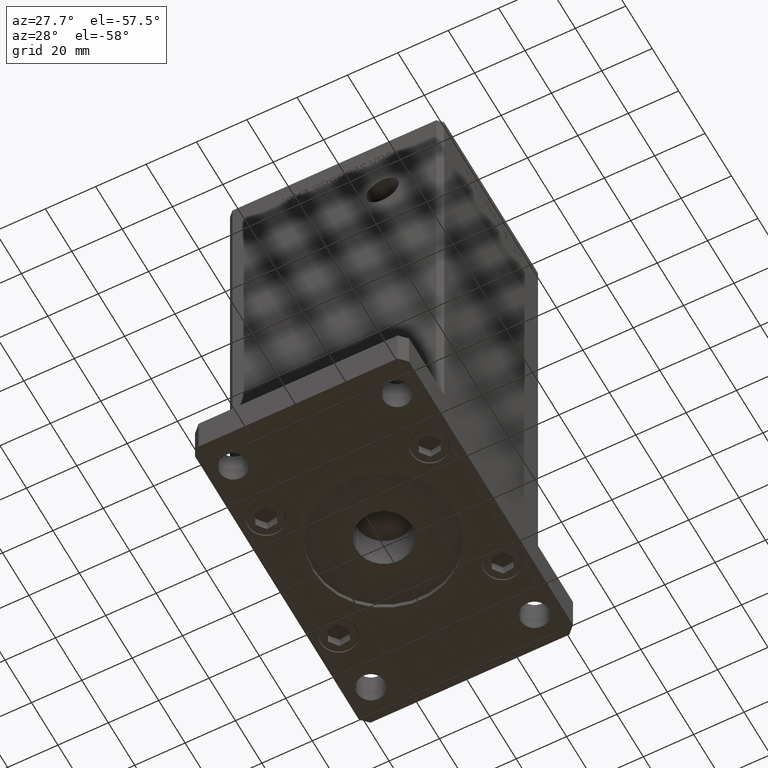
[diagram: clean part render]
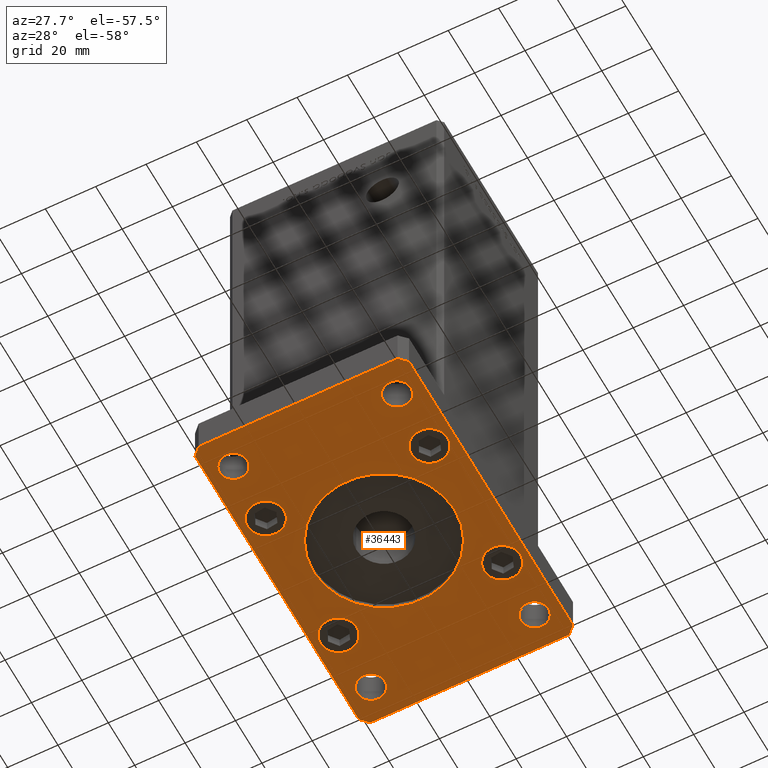
[diagram: same view with one face highlighted and labeled with its STEP entity id]
A machine part, auxiliary view. The second image highlights one B-rep face of the part: STEP entity #36443.
In plain terms, the highlighted planar face has unit normal (0, 0, 1).
Its self-contained STEP definition (entity closure, byte-faithful):
#69 = CIRCLE ( 'NONE', #32183, 5.499999999999991118 ) ;
#217 = DIRECTION ( 'NONE',  ( 0.000000000000000000, 0.000000000000000000, 1.000000000000000000 ) ) ;
#1190 = EDGE_CURVE ( 'NONE', #19573, #35156, #3472, .T. ) ;
#1247 = PLANE ( 'NONE',  #45468 ) ;
#1317 = ORIENTED_EDGE ( 'NONE', *, *, #5429, .T. ) ;
#1530 = CARTESIAN_POINT ( 'NONE',  ( -39.50000000000003553, 65.00000000000000000, 0.000000000000000000 ) ) ;
#1678 = CIRCLE ( 'NONE', #6941, 7.249999999999999112 ) ;
#1743 = AXIS2_PLACEMENT_3D ( 'NONE', #12430, #28985, #24894 ) ;
#1745 = ORIENTED_EDGE ( 'NONE', *, *, #6713, .F. ) ;
#1776 = CARTESIAN_POINT ( 'NONE',  ( -25.25000000000000000, -27.50000000000000000, 0.000000000000000000 ) ) ;
#2996 = VERTEX_POINT ( 'NONE', #10742 ) ;
#3176 = VECTOR ( 'NONE', #15883, 1000.000000000000000 ) ;
#3380 = ORIENTED_EDGE ( 'NONE', *, *, #9908, .T. ) ;
#3472 = LINE ( 'NONE', #19491, #31107 ) ;
#3775 = VERTEX_POINT ( 'NONE', #35430 ) ;
#3977 = DIRECTION ( 'NONE',  ( 0.000000000000000000, 1.000000000000000000, 0.000000000000000000 ) ) ;
#4001 = CARTESIAN_POINT ( 'NONE',  ( 39.50000000000002842, 65.00000000000002842, 0.000000000000000000 ) ) ;
#4085 = CARTESIAN_POINT ( 'NONE',  ( -32.50000000000000711, 27.50000000000000000, 0.000000000000000000 ) ) ;
#4290 = VECTOR ( 'NONE', #17835, 1000.000000000000000 ) ;
#4485 = AXIS2_PLACEMENT_3D ( 'NONE', #4085, #16574, #24710 ) ;
#4531 = DIRECTION ( 'NONE',  ( 0.000000000000000000, 0.000000000000000000, 1.000000000000000000 ) ) ;
#4546 = CARTESIAN_POINT ( 'NONE',  ( -38.00000000000000000, 52.00000000000000000, 0.000000000000000000 ) ) ;
#5429 = EDGE_CURVE ( 'NONE', #52117, #29463, #25949, .T. ) ;
#6012 = DIRECTION ( 'NONE',  ( 1.000000000000000000, 0.000000000000000000, 0.000000000000000000 ) ) ;
#6709 = DIRECTION ( 'NONE',  ( 0.000000000000000000, 0.000000000000000000, 1.000000000000000000 ) ) ;
#6713 = EDGE_CURVE ( 'NONE', #35535, #19573, #42812, .T. ) ;
#6735 = VERTEX_POINT ( 'NONE', #10499 ) ;
#6870 = EDGE_CURVE ( 'NONE', #45907, #27167, #1678, .T. ) ;
#6941 = AXIS2_PLACEMENT_3D ( 'NONE', #19172, #11584, #22966 ) ;
#7000 = ORIENTED_EDGE ( 'NONE', *, *, #10631, .F. ) ;
#7002 = AXIS2_PLACEMENT_3D ( 'NONE', #19513, #36061, #52637 ) ;
#7084 = CARTESIAN_POINT ( 'NONE',  ( 32.50000000000000000, -27.50000000000000000, 0.000000000000000000 ) ) ;
#7114 = EDGE_CURVE ( 'NONE', #40367, #46954, #45066, .T. ) ;
#7289 = FACE_BOUND ( 'NONE', #12927, .T. ) ;
#7879 = VERTEX_POINT ( 'NONE', #12903 ) ;
#8684 = CARTESIAN_POINT ( 'NONE',  ( -27.00000000000000711, 52.00000000000000000, 0.000000000000000000 ) ) ;
#8716 = DIRECTION ( 'NONE',  ( 0.000000000000000000, 0.000000000000000000, -1.000000000000000000 ) ) ;
#8886 = FACE_BOUND ( 'NONE', #41416, .T. ) ;
#9388 = ORIENTED_EDGE ( 'NONE', *, *, #21458, .F. ) ;
#9908 = EDGE_CURVE ( 'NONE', #27167, #45907, #11318, .T. ) ;
#10499 = CARTESIAN_POINT ( 'NONE',  ( 27.00000000000001421, 51.99999999999999289, 0.000000000000000000 ) ) ;
#10535 = ORIENTED_EDGE ( 'NONE', *, *, #18098, .T. ) ;
#10631 = EDGE_CURVE ( 'NONE', #19297, #15177, #49672, .T. ) ;
#10708 = AXIS2_PLACEMENT_3D ( 'NONE', #20867, #217, #49383 ) ;
#10742 = CARTESIAN_POINT ( 'NONE',  ( -37.99999999999997868, -52.00000000000000711, 0.000000000000000000 ) ) ;
#10833 = CARTESIAN_POINT ( 'NONE',  ( 37.99999999999997868, -52.00000000000000711, 0.000000000000000000 ) ) ;
#11318 = CIRCLE ( 'NONE', #52067, 7.249999999999999112 ) ;
#11325 = ORIENTED_EDGE ( 'NONE', *, *, #21607, .T. ) ;
#11505 = CARTESIAN_POINT ( 'NONE',  ( 32.50000000000000000, 27.50000000000000000, 0.000000000000000000 ) ) ;
#11533 = DIRECTION ( 'NONE',  ( -1.000000000000000000, 0.000000000000000000, 0.000000000000000000 ) ) ;
#11584 = DIRECTION ( 'NONE',  ( 0.000000000000000000, 0.000000000000000000, 1.000000000000000000 ) ) ;
#11592 = CIRCLE ( 'NONE', #12428, 28.00000000000000000 ) ;
#11629 = DIRECTION ( 'NONE',  ( 2.238352872228137677E-16, -1.000000000000000000, 0.000000000000000000 ) ) ;
#12428 = AXIS2_PLACEMENT_3D ( 'NONE', #37849, #33779, #33248 ) ;
#12430 = CARTESIAN_POINT ( 'NONE',  ( -32.49999999999997868, -52.00000000000000711, 0.000000000000000000 ) ) ;
#12530 = CARTESIAN_POINT ( 'NONE',  ( -42.49999999999999289, -62.00000000000001421, 0.000000000000000000 ) ) ;
#12610 = DIRECTION ( 'NONE',  ( 1.000000000000000000, 0.000000000000000000, 0.000000000000000000 ) ) ;
#12679 = DIRECTION ( 'NONE',  ( 1.000000000000000000, 0.000000000000000000, -0.000000000000000000 ) ) ;
#12853 = CARTESIAN_POINT ( 'NONE',  ( 39.50000000000002842, 65.00000000000002842, 0.000000000000000000 ) ) ;
#12903 = CARTESIAN_POINT ( 'NONE',  ( -39.50000000000000000, -65.00000000000000000, 0.000000000000000000 ) ) ;
#12927 = EDGE_LOOP ( 'NONE', ( #45845, #33907 ) ) ;
#12995 = CARTESIAN_POINT ( 'NONE',  ( -39.50000000000003553, 65.00000000000000000, 0.000000000000000000 ) ) ;
#13259 = AXIS2_PLACEMENT_3D ( 'NONE', #35642, #31847, #18566 ) ;
#13917 = CARTESIAN_POINT ( 'NONE',  ( -32.50000000000000711, 27.50000000000000000, 0.000000000000000000 ) ) ;
#14919 = AXIS2_PLACEMENT_3D ( 'NONE', #13917, #29414, #37819 ) ;
#15177 = VERTEX_POINT ( 'NONE', #12853 ) ;
#15183 = CIRCLE ( 'NONE', #44698, 28.00000000000000000 ) ;
#15196 = VERTEX_POINT ( 'NONE', #21266 ) ;
#15481 = DIRECTION ( 'NONE',  ( 0.000000000000000000, 0.000000000000000000, 1.000000000000000000 ) ) ;
#15883 = DIRECTION ( 'NONE',  ( 1.000000000000000000, 1.405345600791337191E-15, 0.000000000000000000 ) ) ;
#15972 = EDGE_CURVE ( 'NONE', #29463, #52117, #31436, .T. ) ;
#16171 = CARTESIAN_POINT ( 'NONE',  ( 25.25000000000000000, -27.50000000000000000, 0.000000000000000000 ) ) ;
#16393 = EDGE_CURVE ( 'NONE', #15177, #35535, #36043, .T. ) ;
#16447 = EDGE_LOOP ( 'NONE', ( #20212, #10535 ) ) ;
#16574 = DIRECTION ( 'NONE',  ( 0.000000000000000000, 0.000000000000000000, 1.000000000000000000 ) ) ;
#16642 = EDGE_CURVE ( 'NONE', #44931, #32086, #11592, .T. ) ;
#17284 = FACE_BOUND ( 'NONE', #34687, .T. ) ;
#17795 = ORIENTED_EDGE ( 'NONE', *, *, #1190, .F. ) ;
#17835 = DIRECTION ( 'NONE',  ( -0.7071067811865466846, -0.7071067811865483499, 0.000000000000000000 ) ) ;
#17856 = CARTESIAN_POINT ( 'NONE',  ( -32.50000000000000000, 52.00000000000000000, 0.000000000000000000 ) ) ;
#18098 = EDGE_CURVE ( 'NONE', #21207, #49313, #47836, .T. ) ;
#18115 = EDGE_CURVE ( 'NONE', #43280, #15196, #45230, .T. ) ;
#18489 = CIRCLE ( 'NONE', #47083, 5.499999999999994671 ) ;
#18566 = DIRECTION ( 'NONE',  ( 1.000000000000000000, 0.000000000000000000, 0.000000000000000000 ) ) ;
#18595 = EDGE_LOOP ( 'NONE', ( #24391, #9388, #17795, #1745, #27154, #7000, #50734, #36233 ) ) ;
#19068 = EDGE_CURVE ( 'NONE', #2996, #43843, #33837, .T. ) ;
#19172 = CARTESIAN_POINT ( 'NONE',  ( -32.50000000000000000, -27.50000000000000000, 0.000000000000000000 ) ) ;
#19297 = VERTEX_POINT ( 'NONE', #29970 ) ;
#19491 = CARTESIAN_POINT ( 'NONE',  ( -42.50000000000002132, 62.00000000000000711, 0.000000000000000000 ) ) ;
#19513 = CARTESIAN_POINT ( 'NONE',  ( -32.49999999999997868, -52.00000000000000711, 0.000000000000000000 ) ) ;
#19531 = EDGE_CURVE ( 'NONE', #49664, #30538, #19987, .T. ) ;
#19573 = VERTEX_POINT ( 'NONE', #24235 ) ;
#19987 = CIRCLE ( 'NONE', #38140, 7.249999999999999112 ) ;
#20119 = CARTESIAN_POINT ( 'NONE',  ( -32.50000000000000000, -27.50000000000000000, 0.000000000000000000 ) ) ;
#20205 = EDGE_CURVE ( 'NONE', #43843, #2996, #32141, .T. ) ;
#20212 = ORIENTED_EDGE ( 'NONE', *, *, #31321, .T. ) ;
#20287 = CARTESIAN_POINT ( 'NONE',  ( 42.50000000000000000, -61.99999999999988631, 0.000000000000000000 ) ) ;
#20828 = CARTESIAN_POINT ( 'NONE',  ( 0.000000000000000000, 0.000000000000000000, 0.000000000000000000 ) ) ;
#20867 = CARTESIAN_POINT ( 'NONE',  ( 32.49999999999997868, -52.00000000000000711, 0.000000000000000000 ) ) ;
#21090 = FACE_BOUND ( 'NONE', #39929, .T. ) ;
#21161 = DIRECTION ( 'NONE',  ( -0.7071067811865417996, 0.7071067811865532349, 0.000000000000000000 ) ) ;
#21207 = VERTEX_POINT ( 'NONE', #10833 ) ;
#21266 = CARTESIAN_POINT ( 'NONE',  ( -25.25000000000000711, 27.50000000000000000, 0.000000000000000000 ) ) ;
#21458 = EDGE_CURVE ( 'NONE', #35156, #7879, #36545, .T. ) ;
#21607 = EDGE_CURVE ( 'NONE', #30538, #49664, #21748, .T. ) ;
#21610 = AXIS2_PLACEMENT_3D ( 'NONE', #7084, #15481, #32041 ) ;
#21664 = DIRECTION ( 'NONE',  ( 0.000000000000000000, 0.000000000000000000, 1.000000000000000000 ) ) ;
#21748 = CIRCLE ( 'NONE', #42555, 7.249999999999999112 ) ;
#21891 = FACE_BOUND ( 'NONE', #44155, .T. ) ;
#21979 = DIRECTION ( 'NONE',  ( 0.000000000000000000, 0.000000000000000000, 1.000000000000000000 ) ) ;
#22069 = EDGE_CURVE ( 'NONE', #3775, #6735, #69, .T. ) ;
#22364 = DIRECTION ( 'NONE',  ( 0.000000000000000000, 0.000000000000000000, 1.000000000000000000 ) ) ;
#22491 = LINE ( 'NONE', #39058, #29141 ) ;
#22505 = DIRECTION ( 'NONE',  ( 1.000000000000000000, 0.000000000000000000, 0.000000000000000000 ) ) ;
#22908 = DIRECTION ( 'NONE',  ( 1.000000000000000000, 0.000000000000000000, 0.000000000000000000 ) ) ;
#22966 = DIRECTION ( 'NONE',  ( 1.000000000000000000, 0.000000000000000000, 0.000000000000000000 ) ) ;
#23172 = DIRECTION ( 'NONE',  ( 0.000000000000000000, 0.000000000000000000, 1.000000000000000000 ) ) ;
#23249 = DIRECTION ( 'NONE',  ( 1.000000000000000000, 0.000000000000000000, 0.000000000000000000 ) ) ;
#23684 = EDGE_CURVE ( 'NONE', #48745, #19297, #24066, .T. ) ;
#24066 = LINE ( 'NONE', #20287, #46933 ) ;
#24121 = EDGE_CURVE ( 'NONE', #15196, #43280, #29647, .T. ) ;
#24235 = CARTESIAN_POINT ( 'NONE',  ( -42.50000000000002132, 62.00000000000000711, 0.000000000000000000 ) ) ;
#24391 = ORIENTED_EDGE ( 'NONE', *, *, #46074, .F. ) ;
#24583 = CARTESIAN_POINT ( 'NONE',  ( -42.49999999999999289, -62.00000000000001421, 0.000000000000000000 ) ) ;
#24710 = DIRECTION ( 'NONE',  ( 1.000000000000000000, 0.000000000000000000, 0.000000000000000000 ) ) ;
#24851 = ORIENTED_EDGE ( 'NONE', *, *, #18115, .T. ) ;
#24894 = DIRECTION ( 'NONE',  ( 1.000000000000000000, 0.000000000000000000, 0.000000000000000000 ) ) ;
#25148 = FACE_BOUND ( 'NONE', #43449, .T. ) ;
#25197 = ORIENTED_EDGE ( 'NONE', *, *, #24121, .T. ) ;
#25245 = CARTESIAN_POINT ( 'NONE',  ( 42.50000000000000000, -61.99999999999988631, 0.000000000000000000 ) ) ;
#25949 = CIRCLE ( 'NONE', #21610, 7.249999999999999112 ) ;
#26872 = CARTESIAN_POINT ( 'NONE',  ( 25.25000000000000000, 27.50000000000000000, 0.000000000000000000 ) ) ;
#27154 = ORIENTED_EDGE ( 'NONE', *, *, #16393, .F. ) ;
#27167 = VERTEX_POINT ( 'NONE', #39725 ) ;
#27183 = EDGE_CURVE ( 'NONE', #6735, #3775, #53163, .T. ) ;
#28639 = LINE ( 'NONE', #28907, #3176 ) ;
#28907 = CARTESIAN_POINT ( 'NONE',  ( -39.50000000000000000, -65.00000000000000000, 0.000000000000000000 ) ) ;
#28985 = DIRECTION ( 'NONE',  ( 0.000000000000000000, 0.000000000000000000, 1.000000000000000000 ) ) ;
#29141 = VECTOR ( 'NONE', #30647, 1000.000000000000114 ) ;
#29414 = DIRECTION ( 'NONE',  ( 0.000000000000000000, 0.000000000000000000, 1.000000000000000000 ) ) ;
#29463 = VERTEX_POINT ( 'NONE', #16171 ) ;
#29647 = CIRCLE ( 'NONE', #14919, 7.249999999999999112 ) ;
#29970 = CARTESIAN_POINT ( 'NONE',  ( 42.50000000000000000, 62.00000000000000711, 0.000000000000000000 ) ) ;
#30338 = DIRECTION ( 'NONE',  ( 1.000000000000000000, 0.000000000000000000, 0.000000000000000000 ) ) ;
#30432 = CARTESIAN_POINT ( 'NONE',  ( -28.00000000000000000, 0.000000000000000000, 0.000000000000000000 ) ) ;
#30538 = VERTEX_POINT ( 'NONE', #43814 ) ;
#30599 = AXIS2_PLACEMENT_3D ( 'NONE', #49806, #50605, #12610 ) ;
#30647 = DIRECTION ( 'NONE',  ( 0.7071067811865459074, 0.7071067811865491270, 0.000000000000000000 ) ) ;
#30800 = ORIENTED_EDGE ( 'NONE', *, *, #31364, .T. ) ;
#31107 = VECTOR ( 'NONE', #11629, 1000.000000000000000 ) ;
#31321 = EDGE_CURVE ( 'NONE', #49313, #21207, #52286, .T. ) ;
#31364 = EDGE_CURVE ( 'NONE', #46954, #40367, #18489, .T. ) ;
#31436 = CIRCLE ( 'NONE', #30599, 7.249999999999999112 ) ;
#31847 = DIRECTION ( 'NONE',  ( 0.000000000000000000, 0.000000000000000000, 1.000000000000000000 ) ) ;
#31944 = CARTESIAN_POINT ( 'NONE',  ( 39.50000000000001421, -64.99999999999988631, 0.000000000000000000 ) ) ;
#31968 = FACE_BOUND ( 'NONE', #44162, .T. ) ;
#32041 = DIRECTION ( 'NONE',  ( 1.000000000000000000, 0.000000000000000000, 0.000000000000000000 ) ) ;
#32086 = VERTEX_POINT ( 'NONE', #30432 ) ;
#32141 = CIRCLE ( 'NONE', #7002, 5.499999999999994671 ) ;
#32183 = AXIS2_PLACEMENT_3D ( 'NONE', #44158, #6709, #23249 ) ;
#32491 = CARTESIAN_POINT ( 'NONE',  ( 39.75000000000000000, -27.50000000000000000, 0.000000000000000000 ) ) ;
#32507 = FACE_OUTER_BOUND ( 'NONE', #18595, .T. ) ;
#33248 = DIRECTION ( 'NONE',  ( -1.000000000000000000, 0.000000000000000000, 0.000000000000000000 ) ) ;
#33350 = CARTESIAN_POINT ( 'NONE',  ( 28.00000000000000000, 3.429011037612589276E-15, 0.000000000000000000 ) ) ;
#33779 = DIRECTION ( 'NONE',  ( 0.000000000000000000, 0.000000000000000000, -1.000000000000000000 ) ) ;
#33837 = CIRCLE ( 'NONE', #1743, 5.499999999999994671 ) ;
#33907 = ORIENTED_EDGE ( 'NONE', *, *, #16642, .F. ) ;
#34687 = EDGE_LOOP ( 'NONE', ( #38320, #34882 ) ) ;
#34882 = ORIENTED_EDGE ( 'NONE', *, *, #22069, .T. ) ;
#35156 = VERTEX_POINT ( 'NONE', #12530 ) ;
#35430 = CARTESIAN_POINT ( 'NONE',  ( 37.99999999999999289, 51.99999999999999289, 0.000000000000000000 ) ) ;
#35535 = VERTEX_POINT ( 'NONE', #12995 ) ;
#35642 = CARTESIAN_POINT ( 'NONE',  ( 32.50000000000000000, 51.99999999999999289, 0.000000000000000000 ) ) ;
#36043 = LINE ( 'NONE', #4001, #37529 ) ;
#36061 = DIRECTION ( 'NONE',  ( 0.000000000000000000, 0.000000000000000000, 1.000000000000000000 ) ) ;
#36233 = ORIENTED_EDGE ( 'NONE', *, *, #40172, .F. ) ;
#36443 = ADVANCED_FACE ( 'NONE', ( #7289, #32507, #31968, #17284, #21891, #21090, #8886, #25148, #37646, #41718 ), #1247, .F. ) ;
#36466 = DIRECTION ( 'NONE',  ( 0.000000000000000000, 0.000000000000000000, 1.000000000000000000 ) ) ;
#36545 = LINE ( 'NONE', #24583, #49502 ) ;
#36937 = CARTESIAN_POINT ( 'NONE',  ( 32.49999999999997868, -52.00000000000000711, 0.000000000000000000 ) ) ;
#37071 = CARTESIAN_POINT ( 'NONE',  ( -39.75000000000000711, 27.50000000000000000, 0.000000000000000000 ) ) ;
#37529 = VECTOR ( 'NONE', #52616, 1000.000000000000000 ) ;
#37646 = FACE_BOUND ( 'NONE', #50447, .T. ) ;
#37695 = EDGE_CURVE ( 'NONE', #32086, #44931, #15183, .T. ) ;
#37819 = DIRECTION ( 'NONE',  ( 1.000000000000000000, 0.000000000000000000, 0.000000000000000000 ) ) ;
#37849 = CARTESIAN_POINT ( 'NONE',  ( 0.000000000000000000, 0.000000000000000000, 0.000000000000000000 ) ) ;
#38140 = AXIS2_PLACEMENT_3D ( 'NONE', #11505, #36466, #53040 ) ;
#38320 = ORIENTED_EDGE ( 'NONE', *, *, #27183, .T. ) ;
#39058 = CARTESIAN_POINT ( 'NONE',  ( 39.50000000000001421, -64.99999999999988631, 0.000000000000000000 ) ) ;
#39381 = ORIENTED_EDGE ( 'NONE', *, *, #15972, .T. ) ;
#39725 = CARTESIAN_POINT ( 'NONE',  ( -39.75000000000000000, -27.50000000000000000, 0.000000000000000000 ) ) ;
#39742 = CARTESIAN_POINT ( 'NONE',  ( 32.50000000000000000, 27.50000000000000000, 0.000000000000000000 ) ) ;
#39929 = EDGE_LOOP ( 'NONE', ( #3380, #49836 ) ) ;
#40172 = EDGE_CURVE ( 'NONE', #51208, #48745, #22491, .T. ) ;
#40367 = VERTEX_POINT ( 'NONE', #4546 ) ;
#40472 = ORIENTED_EDGE ( 'NONE', *, *, #7114, .T. ) ;
#41153 = DIRECTION ( 'NONE',  ( 0.7071067811865483499, -0.7071067811865466846, 0.000000000000000000 ) ) ;
#41416 = EDGE_LOOP ( 'NONE', ( #39381, #1317 ) ) ;
#41515 = ORIENTED_EDGE ( 'NONE', *, *, #20205, .T. ) ;
#41541 = DIRECTION ( 'NONE',  ( 0.000000000000000000, 0.000000000000000000, 1.000000000000000000 ) ) ;
#41676 = VECTOR ( 'NONE', #21161, 1000.000000000000000 ) ;
#41718 = FACE_BOUND ( 'NONE', #16447, .T. ) ;
#42555 = AXIS2_PLACEMENT_3D ( 'NONE', #39742, #23172, #22908 ) ;
#42812 = LINE ( 'NONE', #1530, #4290 ) ;
#43280 = VERTEX_POINT ( 'NONE', #37071 ) ;
#43449 = EDGE_LOOP ( 'NONE', ( #50986, #11325 ) ) ;
#43814 = CARTESIAN_POINT ( 'NONE',  ( 39.75000000000000000, 27.50000000000000000, 0.000000000000000000 ) ) ;
#43843 = VERTEX_POINT ( 'NONE', #44284 ) ;
#44097 = CARTESIAN_POINT ( 'NONE',  ( 26.99999999999998579, -52.00000000000000711, 0.000000000000000000 ) ) ;
#44155 = EDGE_LOOP ( 'NONE', ( #40472, #30800 ) ) ;
#44158 = CARTESIAN_POINT ( 'NONE',  ( 32.50000000000000000, 51.99999999999999289, 0.000000000000000000 ) ) ;
#44162 = EDGE_LOOP ( 'NONE', ( #51273, #41515 ) ) ;
#44284 = CARTESIAN_POINT ( 'NONE',  ( -26.99999999999998579, -52.00000000000000711, 0.000000000000000000 ) ) ;
#44698 = AXIS2_PLACEMENT_3D ( 'NONE', #46155, #8716, #11533 ) ;
#44931 = VERTEX_POINT ( 'NONE', #33350 ) ;
#45066 = CIRCLE ( 'NONE', #51147, 5.499999999999994671 ) ;
#45081 = CARTESIAN_POINT ( 'NONE',  ( 42.50000000000000000, 62.00000000000000711, 0.000000000000000000 ) ) ;
#45230 = CIRCLE ( 'NONE', #4485, 7.249999999999999112 ) ;
#45468 = AXIS2_PLACEMENT_3D ( 'NONE', #20828, #4531, #12679 ) ;
#45845 = ORIENTED_EDGE ( 'NONE', *, *, #37695, .F. ) ;
#45907 = VERTEX_POINT ( 'NONE', #1776 ) ;
#46074 = EDGE_CURVE ( 'NONE', #7879, #51208, #28639, .T. ) ;
#46155 = CARTESIAN_POINT ( 'NONE',  ( 0.000000000000000000, 0.000000000000000000, 0.000000000000000000 ) ) ;
#46933 = VECTOR ( 'NONE', #3977, 1000.000000000000000 ) ;
#46954 = VERTEX_POINT ( 'NONE', #8684 ) ;
#47083 = AXIS2_PLACEMENT_3D ( 'NONE', #17856, #21664, #30338 ) ;
#47836 = CIRCLE ( 'NONE', #48701, 5.499999999999998224 ) ;
#48701 = AXIS2_PLACEMENT_3D ( 'NONE', #36937, #41541, #6012 ) ;
#48745 = VERTEX_POINT ( 'NONE', #25245 ) ;
#49313 = VERTEX_POINT ( 'NONE', #44097 ) ;
#49383 = DIRECTION ( 'NONE',  ( 1.000000000000000000, 0.000000000000000000, 0.000000000000000000 ) ) ;
#49502 = VECTOR ( 'NONE', #41153, 1000.000000000000000 ) ;
#49664 = VERTEX_POINT ( 'NONE', #26872 ) ;
#49672 = LINE ( 'NONE', #45081, #41676 ) ;
#49806 = CARTESIAN_POINT ( 'NONE',  ( 32.50000000000000000, -27.50000000000000000, 0.000000000000000000 ) ) ;
#49836 = ORIENTED_EDGE ( 'NONE', *, *, #6870, .T. ) ;
#50447 = EDGE_LOOP ( 'NONE', ( #24851, #25197 ) ) ;
#50605 = DIRECTION ( 'NONE',  ( 0.000000000000000000, 0.000000000000000000, 1.000000000000000000 ) ) ;
#50734 = ORIENTED_EDGE ( 'NONE', *, *, #23684, .F. ) ;
#50986 = ORIENTED_EDGE ( 'NONE', *, *, #19531, .T. ) ;
#51147 = AXIS2_PLACEMENT_3D ( 'NONE', #51437, #22364, #51169 ) ;
#51169 = DIRECTION ( 'NONE',  ( 1.000000000000000000, 0.000000000000000000, 0.000000000000000000 ) ) ;
#51208 = VERTEX_POINT ( 'NONE', #31944 ) ;
#51273 = ORIENTED_EDGE ( 'NONE', *, *, #19068, .T. ) ;
#51437 = CARTESIAN_POINT ( 'NONE',  ( -32.50000000000000000, 52.00000000000000000, 0.000000000000000000 ) ) ;
#52067 = AXIS2_PLACEMENT_3D ( 'NONE', #20119, #21979, #22505 ) ;
#52117 = VERTEX_POINT ( 'NONE', #32491 ) ;
#52286 = CIRCLE ( 'NONE', #10708, 5.499999999999998224 ) ;
#52616 = DIRECTION ( 'NONE',  ( -1.000000000000000000, -3.513364001978340512E-16, 0.000000000000000000 ) ) ;
#52637 = DIRECTION ( 'NONE',  ( 1.000000000000000000, 0.000000000000000000, 0.000000000000000000 ) ) ;
#53040 = DIRECTION ( 'NONE',  ( 1.000000000000000000, 0.000000000000000000, 0.000000000000000000 ) ) ;
#53163 = CIRCLE ( 'NONE', #13259, 5.499999999999991118 ) ;